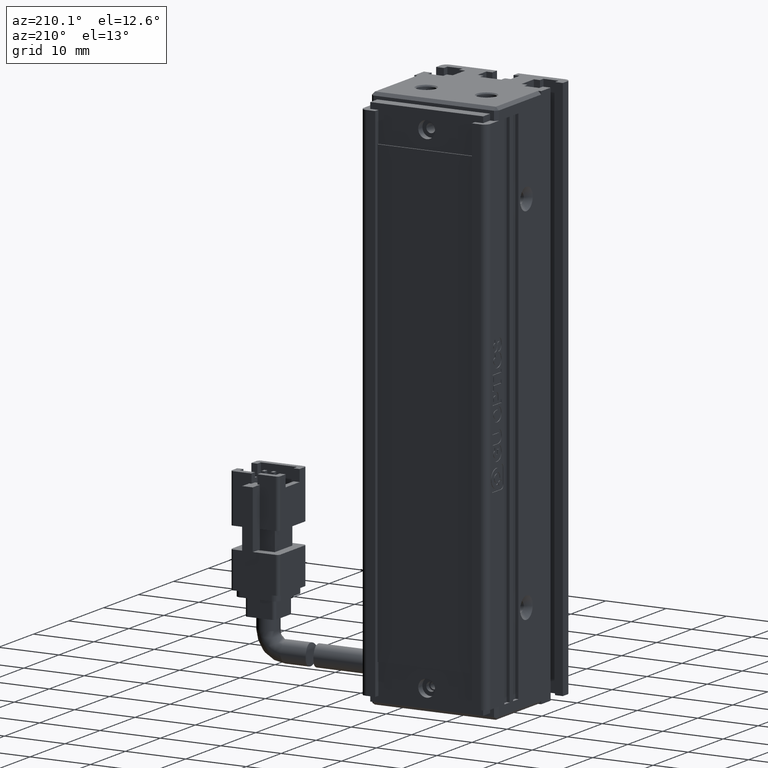
[diagram: clean part render]
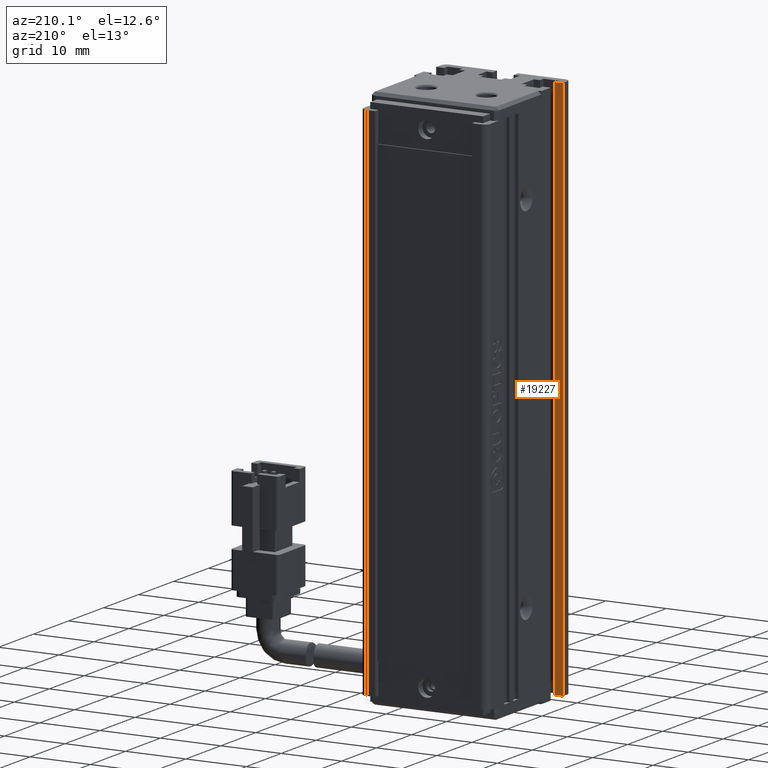
[diagram: same view with one face highlighted and labeled with its STEP entity id]
A machine part, auxiliary view. The second image highlights one B-rep face of the part: STEP entity #19227.
In plain terms, the highlighted planar face has unit normal (0, -1, 0).
Its self-contained STEP definition (entity closure, byte-faithful):
#543 = CARTESIAN_POINT ( 'NONE',  ( 30.42537974683542100, 13.29073232304837200, -70.00000000000000000 ) ) ;
#915 = ORIENTED_EDGE ( 'NONE', *, *, #22394, .T. ) ;
#938 = VERTEX_POINT ( 'NONE', #543 ) ;
#4021 = VECTOR ( 'NONE', #11551, 1000.000000000000000 ) ;
#4118 = VECTOR ( 'NONE', #19810, 1000.000000000000000 ) ;
#4795 = VECTOR ( 'NONE', #29908, 1000.000000000000000 ) ;
#5464 = CARTESIAN_POINT ( 'NONE',  ( 31.72537974683542600, 13.29073232304837200, -70.00000000000000000 ) ) ;
#6553 = ORIENTED_EDGE ( 'NONE', *, *, #16977, .F. ) ;
#7635 = DIRECTION ( 'NONE',  ( 0.0000000000000000000, -1.000000000000000000, 0.0000000000000000000 ) ) ;
#7654 = VECTOR ( 'NONE', #12020, 1000.000000000000000 ) ;
#7855 = PLANE ( 'NONE',  #7983 ) ;
#7983 = AXIS2_PLACEMENT_3D ( 'NONE', #12371, #7635, #24952 ) ;
#9631 = FACE_OUTER_BOUND ( 'NONE', #26229, .T. ) ;
#11524 = LINE ( 'NONE', #26910, #7654 ) ;
#11551 = DIRECTION ( 'NONE',  ( -0.0000000000000000000, -0.0000000000000000000, -1.000000000000000000 ) ) ;
#12020 = DIRECTION ( 'NONE',  ( -1.000000000000000000, -0.0000000000000000000, -0.0000000000000000000 ) ) ;
#12371 = CARTESIAN_POINT ( 'NONE',  ( 40.92537974683542500, 13.29073232304837200, -70.00000000000000000 ) ) ;
#13138 = ORIENTED_EDGE ( 'NONE', *, *, #20290, .F. ) ;
#14645 = ORIENTED_EDGE ( 'NONE', *, *, #14787, .F. ) ;
#14787 = EDGE_CURVE ( 'NONE', #938, #18077, #19538, .T. ) ;
#14905 = VERTEX_POINT ( 'NONE', #5464 ) ;
#15121 = CARTESIAN_POINT ( 'NONE',  ( 31.72537974683542600, 13.29073232304837200, -160.0000000000000000 ) ) ;
#16209 = VERTEX_POINT ( 'NONE', #15121 ) ;
#16977 = EDGE_CURVE ( 'NONE', #14905, #938, #11524, .T. ) ;
#17286 = LINE ( 'NONE', #26993, #4118 ) ;
#18077 = VERTEX_POINT ( 'NONE', #27669 ) ;
#19227 = ADVANCED_FACE ( 'NONE', ( #9631 ), #7855, .F. ) ;
#19538 = LINE ( 'NONE', #27156, #4795 ) ;
#19810 = DIRECTION ( 'NONE',  ( 1.000000000000000000, 0.0000000000000000000, 0.0000000000000000000 ) ) ;
#20290 = EDGE_CURVE ( 'NONE', #18077, #16209, #17286, .T. ) ;
#21643 = CARTESIAN_POINT ( 'NONE',  ( 31.72537974683542600, 13.29073232304837200, -70.00000000000000000 ) ) ;
#22394 = EDGE_CURVE ( 'NONE', #14905, #16209, #26114, .T. ) ;
#24952 = DIRECTION ( 'NONE',  ( 0.0000000000000000000, -0.0000000000000000000, -1.000000000000000000 ) ) ;
#26114 = LINE ( 'NONE', #21643, #4021 ) ;
#26229 = EDGE_LOOP ( 'NONE', ( #14645, #6553, #915, #13138 ) ) ;
#26910 = CARTESIAN_POINT ( 'NONE',  ( 40.92537974683542500, 13.29073232304837200, -70.00000000000000000 ) ) ;
#26993 = CARTESIAN_POINT ( 'NONE',  ( 40.92537974683542500, 13.29073232304837200, -160.0000000000000000 ) ) ;
#27156 = CARTESIAN_POINT ( 'NONE',  ( 30.42537974683542100, 13.29073232304837200, -70.00000000000000000 ) ) ;
#27669 = CARTESIAN_POINT ( 'NONE',  ( 30.42537974683542100, 13.29073232304837200, -160.0000000000000000 ) ) ;
#29908 = DIRECTION ( 'NONE',  ( -0.0000000000000000000, -0.0000000000000000000, -1.000000000000000000 ) ) ;